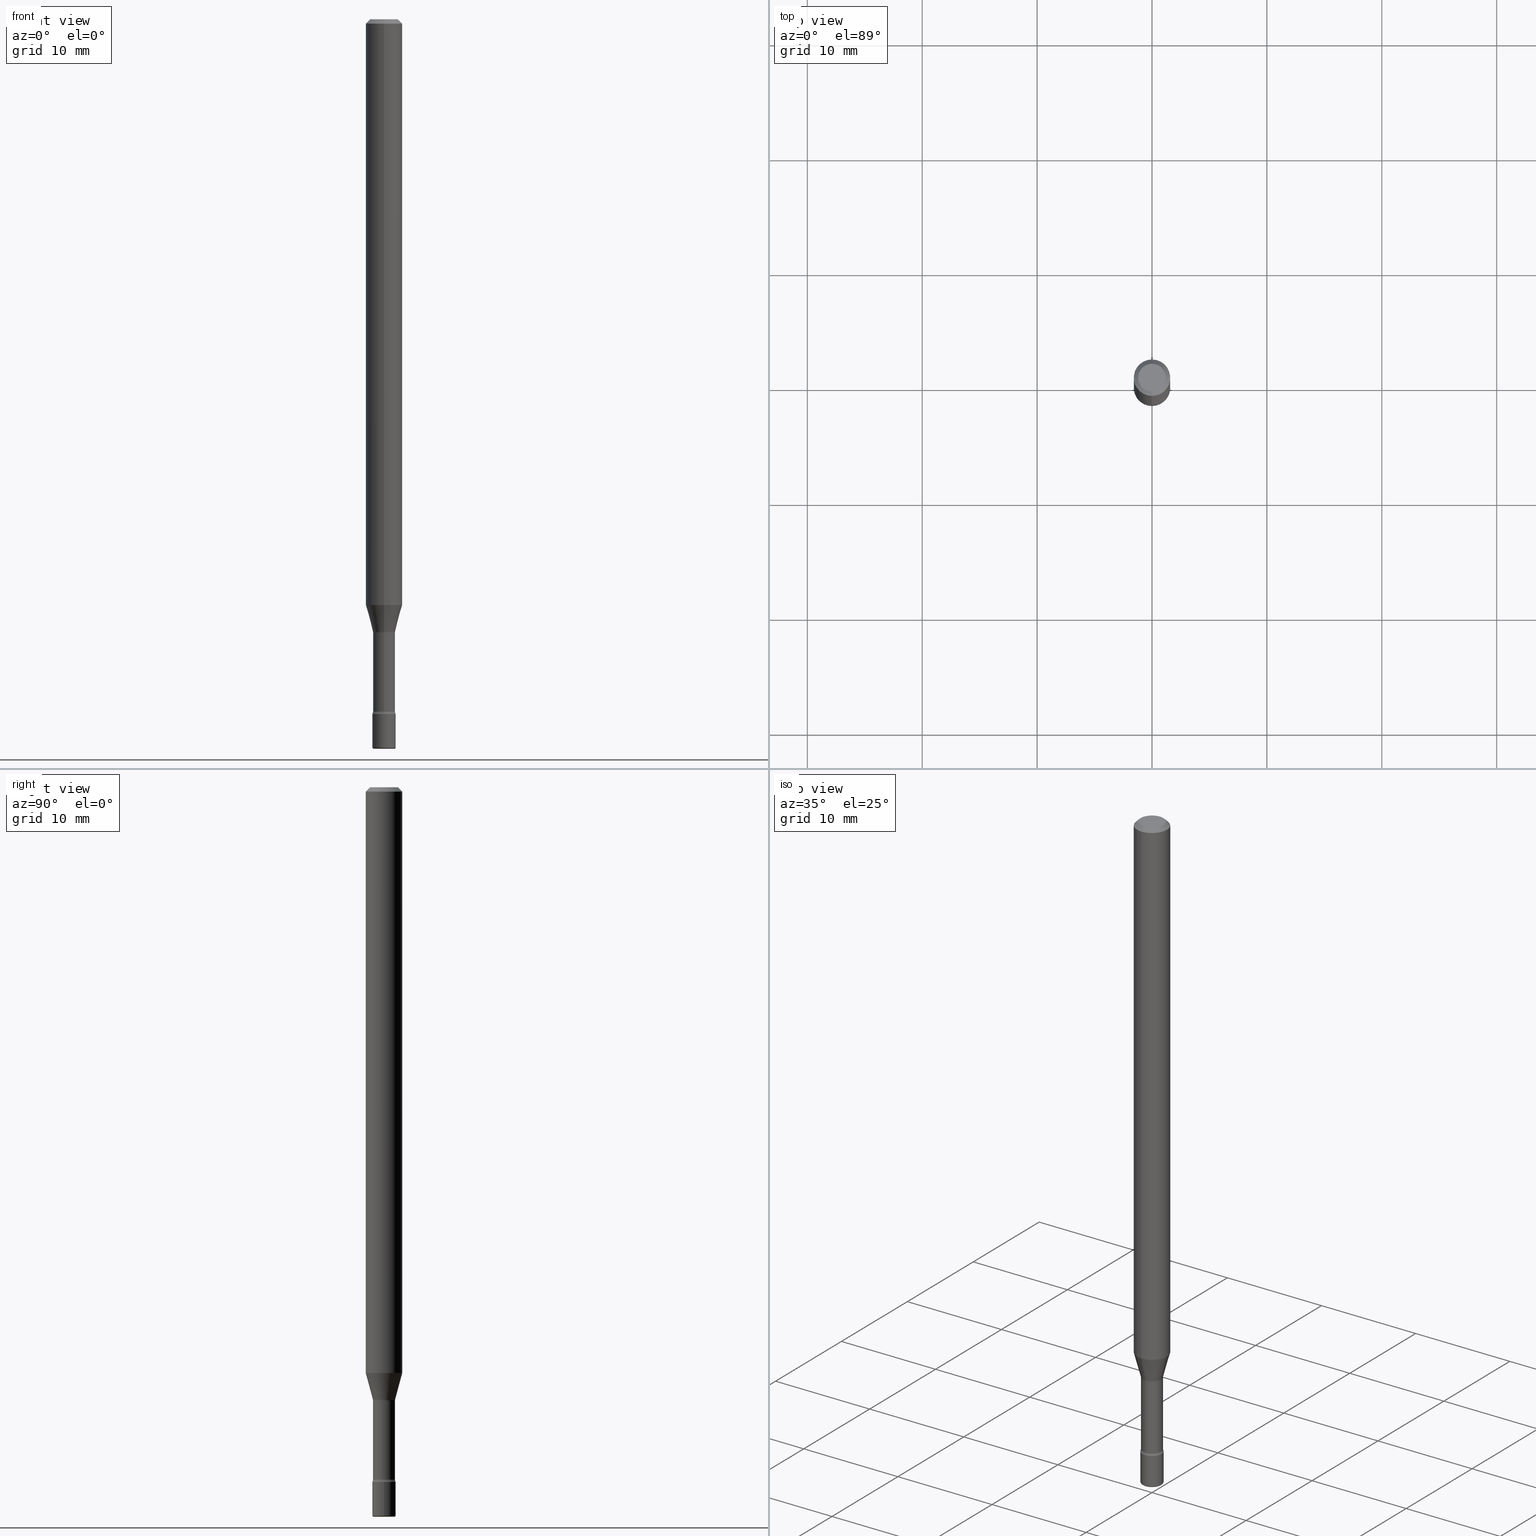
[diagram: canonical four-view strip — front | top / right | iso, engineering-drawing reading convention]
A machine part, canonical four-view strip (front | top / right | iso — engineering-drawing reading convention). The complete STEP part file that produces these views, byte-faithful:
ISO-10303-21;
HEADER;
FILE_DESCRIPTION (( 'STEP AP203' ),
    '1' );
FILE_NAME ('08839.STEP',
    '2024-03-06T20:04:58',
    ( '' ),
    ( '' ),
    'SwSTEP 2.0',
    'SolidWorks 2023',
    '' );
FILE_SCHEMA (( 'CONFIG_CONTROL_DESIGN' ));
ENDSEC;

DATA;
#1 = VECTOR ( 'NONE', #470, 39.37007874015748143 ) ;
#2 = DIRECTION ( 'NONE',  ( -2.445371158952634038E-29, 3.491621175237824120E-15, 1.000000000000000000 ) ) ;
#3 = ORIENTED_EDGE ( 'NONE', *, *, #386, .T. ) ;
#4 = CALENDAR_DATE ( 2024, 6, 3 ) ;
#5 = EDGE_CURVE ( 'NONE', #192, #325, #60, .T. ) ;
#6 = DIRECTION ( 'NONE',  ( -2.445468806185136597E-29, 3.491481338843145583E-15, 1.000000000000000000 ) ) ;
#7 = CALENDAR_DATE ( 2024, 6, 3 ) ;
#8 = DIRECTION ( 'NONE',  ( -2.445371158952634318E-29, 3.491621175237824120E-15, 1.000000000000000000 ) ) ;
#9 = DIRECTION ( 'NONE',  ( -2.438088387897960049E-29, 3.491481338843145188E-15, 1.000000000000000000 ) ) ;
#10 = CIRCLE ( 'NONE', #81, 0.06250000000000000000 ) ;
#11 = VECTOR ( 'NONE', #363, 39.37007874015748143 ) ;
#12 = CARTESIAN_POINT ( 'NONE',  ( 6.113672015462840371E-29, -8.728703347107863365E-15, -2.499999999999999556 ) ) ;
#13 = CARTESIAN_POINT ( 'NONE',  ( -3.673038368462462390E-16, -0.05260000000000734227, -2.101974787463810834 ) ) ;
#14 = ORIENTED_EDGE ( 'NONE', *, *, #521, .F. ) ;
#15 = ADVANCED_FACE ( 'NONE', ( #117 ), #465, .T. ) ;
#16 = CIRCLE ( 'NONE', #142, 0.06250000000000000000 ) ;
#17 = FACE_OUTER_BOUND ( 'NONE', #335, .T. ) ;
#18 = VERTEX_POINT ( 'NONE', #417 ) ;
#19 = CARTESIAN_POINT ( 'NONE',  ( 4.440892098500625669E-16, 0.06250000000000000000, 2.598470754388820311E-16 ) ) ;
#20 = CARTESIAN_POINT ( 'NONE',  ( 6.618019183240949293E-46, -9.462883955146153343E-32, -2.708254496839223107E-17 ) ) ;
#21 = ORIENTED_EDGE ( 'NONE', *, *, #547, .T. ) ;
#22 = EDGE_CURVE ( 'NONE', #206, #204, #127, .T. ) ;
#23 = TOROIDAL_SURFACE ( 'NONE', #244, 0.05260000000000000092, 0.01500000000000002720 ) ;
#24 = ORIENTED_EDGE ( 'NONE', *, *, #22, .F. ) ;
#25 = CARTESIAN_POINT ( 'NONE',  ( -4.364351673553427600E-16, -0.06250000000000703604, -2.007071934891535125 ) ) ;
#26 = ADVANCED_FACE ( 'NONE', ( #563 ), #190, .T. ) ;
#27 = ORIENTED_EDGE ( 'NONE', *, *, #447, .T. ) ;
#28 = CYLINDRICAL_SURFACE ( 'NONE', #562, 0.04000000000000000083 ) ;
#29 = ORIENTED_EDGE ( 'NONE', *, *, #33, .F. ) ;
#30 = DIRECTION ( 'NONE',  ( 1.000000000000000000, -6.982962677686276966E-15, 0.000000000000000000 ) ) ;
#31 = EDGE_CURVE ( 'NONE', #382, #156, #32, .T. ) ;
#32 = LINE ( 'NONE', #208, #448 ) ;
#33 = EDGE_CURVE ( 'NONE', #560, #122, #226, .T. ) ;
#34 = AXIS2_PLACEMENT_3D ( 'NONE', #283, #507, #115 ) ;
#35 = AXIS2_PLACEMENT_3D ( 'NONE', #360, #109, #356 ) ;
#36 = DIRECTION ( 'NONE',  ( 6.982962677686265922E-15, 1.000000000000000000, -3.483106191921935554E-15 ) ) ;
#37 = ORIENTED_EDGE ( 'NONE', *, *, #439, .T. ) ;
#38 = CARTESIAN_POINT ( 'NONE',  ( 5.820215758720625190E-29, -8.309725586446686731E-15, -2.379999999999999893 ) ) ;
#39 = ADVANCED_FACE ( 'NONE', ( #80 ), #183, .T. ) ;
#40 = APPROVAL_ROLE ( '' ) ;
#41 = CARTESIAN_POINT ( 'NONE',  ( -1.169113584055446105E-44, 1.669184350826100908E-30, 4.780733988912460139E-16 ) ) ;
#42 = PRODUCT_DEFINITION_SHAPE ( 'NONE', 'NONE',  #357 ) ;
#43 = ORIENTED_EDGE ( 'NONE', *, *, #273, .F. ) ;
#44 = CARTESIAN_POINT ( 'NONE',  ( 5.820215758720625190E-29, -8.309725586446686731E-15, -2.379999999999999893 ) ) ;
#45 = DATE_TIME_ROLE ( 'creation_date' ) ;
#46 = DIRECTION ( 'NONE',  ( 6.982962677686265922E-15, 1.000000000000000000, -3.483106191921935554E-15 ) ) ;
#47 = DIRECTION ( 'NONE',  ( 6.982962677686265922E-15, 1.000000000000000000, -3.491621175237824120E-15 ) ) ;
#48 = CARTESIAN_POINT ( 'NONE',  ( 5.800312587032241644E-29, -8.281309132162736146E-15, -2.371861204020250025 ) ) ;
#49 = CIRCLE ( 'NONE', #34, 0.04000000000000000083 ) ;
#50 = AXIS2_PLACEMENT_3D ( 'NONE', #522, #258, #491 ) ;
#51 = ORIENTED_EDGE ( 'NONE', *, *, #475, .F. ) ;
#52 = CYLINDRICAL_SURFACE ( 'NONE', #414, 0.06250000000000000000 ) ;
#53 = DIMENSIONAL_EXPONENTS ( 1.000000000000000000, 0.000000000000000000, 0.000000000000000000, 0.000000000000000000, 0.000000000000000000, 0.000000000000000000, 0.000000000000000000 ) ;
#54 = FACE_OUTER_BOUND ( 'NONE', #515, .T. ) ;
#55 = EDGE_LOOP ( 'NONE', ( #150, #135 ) ) ;
#56 = APPLICATION_CONTEXT ( 'configuration controlled 3d designs of mechanical parts and assemblies' ) ;
#57 = DIRECTION ( 'NONE',  ( -1.000000000000000000, 6.982962677686265922E-15, -4.876176775795935793E-29 ) ) ;
#58 = VECTOR ( 'NONE', #377, 39.37007874015748143 ) ;
#59 = ORIENTED_EDGE ( 'NONE', *, *, #535, .F. ) ;
#60 = CIRCLE ( 'NONE', #476, 0.04000000000000000777 ) ;
#61 = CIRCLE ( 'NONE', #210, 0.06250000000000000000 ) ;
#62 = ORIENTED_EDGE ( 'NONE', *, *, #567, .T. ) ;
#63 = DIRECTION ( 'NONE',  ( -6.982962677686265922E-15, -1.000000000000000000, 3.491621175237824120E-15 ) ) ;
#64 = EDGE_CURVE ( 'NONE', #214, #480, #49, .T. ) ;
#65 = ORIENTED_EDGE ( 'NONE', *, *, #506, .T. ) ;
#66 = LINE ( 'NONE', #19, #11 ) ;
#67 = CARTESIAN_POINT ( 'NONE',  ( 6.101444671431915719E-29, -8.711245940413648329E-15, -2.495000000000000107 ) ) ;
#68 = APPROVAL ( #531, 'UNSPECIFIED' ) ;
#69 = ORIENTED_EDGE ( 'NONE', *, *, #516, .F. ) ;
#70 = CARTESIAN_POINT ( 'NONE',  ( 0.000000000000000000, 0.000000000000000000, 0.000000000000000000 ) ) ;
#71 = DIRECTION ( 'NONE',  ( 7.105427357601001859E-15, 1.000000000000000000, 0.000000000000000000 ) ) ;
#72 = AXIS2_PLACEMENT_3D ( 'NONE', #492, #407, #499 ) ;
#73 = CARTESIAN_POINT ( 'NONE',  ( 3.668056738428958326E-31, -5.237431762856745967E-17, -0.01500000000000002720 ) ) ;
#74 = ORIENTED_EDGE ( 'NONE', *, *, #290, .T. ) ;
#75 = FACE_OUTER_BOUND ( 'NONE', #452, .T. ) ;
#76 = ORIENTED_EDGE ( 'NONE', *, *, #314, .T. ) ;
#77 = ORIENTED_EDGE ( 'NONE', *, *, #393, .T. ) ;
#78 = DIRECTION ( 'NONE',  ( -2.445371158952634318E-29, 3.491621175237824120E-15, 1.000000000000000000 ) ) ;
#79 = UNCERTAINTY_MEASURE_WITH_UNIT (LENGTH_MEASURE( 1.000000000000000082E-05 ), #485, 'distance_accuracy_value', 'NONE');
#80 = FACE_OUTER_BOUND ( 'NONE', #280, .T. ) ;
#81 = AXIS2_PLACEMENT_3D ( 'NONE', #339, #570, #301 ) ;
#82 = ORIENTED_EDGE ( 'NONE', *, *, #549, .F. ) ;
#83 = CALENDAR_DATE ( 2024, 6, 3 ) ;
#84 = CARTESIAN_POINT ( 'NONE',  ( -0.03999999999999989675, -8.427028846109609580E-15, -2.495000000000000107 ) ) ;
#85 = PERSON ( 'UNSPECIFIED', 'UNSPECIFIED', 'UNSPECIFIED', ('UNSPECIFIED'), ('UNSPECIFIED'), ('UNSPECIFIED') ) ;
#86 = ORIENTED_EDGE ( 'NONE', *, *, #398, .T. ) ;
#87 = APPROVAL_ROLE ( '' ) ;
#88 = DIRECTION ( 'NONE',  ( 1.000000000000000000, -6.982962677686265922E-15, 4.876176775795935793E-29 ) ) ;
#89 = ORIENTED_EDGE ( 'NONE', *, *, #22, .T. ) ;
#90 = COORDINATED_UNIVERSAL_TIME_OFFSET ( 5, 0, .BEHIND. ) ;
#91 = LINE ( 'NONE', #347, #252 ) ;
#92 = CIRCLE ( 'NONE', #277, 0.03500000000000000333 ) ;
#93 = ORIENTED_EDGE ( 'NONE', *, *, #547, .F. ) ;
#94 = TOROIDAL_SURFACE ( 'NONE', #276, 0.05260000000000002174, 0.01499999999999996822 ) ;
#95 = PRODUCT_DEFINITION_FORMATION_WITH_SPECIFIED_SOURCE ( 'ANY', '', #132, .NOT_KNOWN. ) ;
#96 = CARTESIAN_POINT ( 'NONE',  ( -2.625593966809460162E-16, -0.03760000000000833509, -2.371861204020250025 ) ) ;
#97 = COORDINATED_UNIVERSAL_TIME_OFFSET ( 5, 0, .BEHIND. ) ;
#98 = CC_DESIGN_PERSON_AND_ORGANIZATION_ASSIGNMENT ( #294, #481, ( #357 ) ) ;
#99 = CARTESIAN_POINT ( 'NONE',  ( -2.625593966809521792E-16, -0.03760000000000733589, -2.101974787463810834 ) ) ;
#100 = EDGE_CURVE ( 'NONE', #177, #204, #141, .T. ) ;
#101 = LINE ( 'NONE', #279, #58 ) ;
#102 = VERTEX_POINT ( 'NONE', #25 ) ;
#103 = CARTESIAN_POINT ( 'NONE',  ( 6.101444671431915719E-29, -8.711245940413648329E-15, -2.495000000000000107 ) ) ;
#104 = CIRCLE ( 'NONE', #494, 0.03759999999999999454 ) ;
#105 = CC_DESIGN_APPROVAL ( #68, ( #357 ) ) ;
#106 = CARTESIAN_POINT ( 'NONE',  ( 5.140313774130382338E-29, -7.339005745148683013E-15, -2.101974787463810834 ) ) ;
#107 = PLANE ( 'NONE',  #322 ) ;
#108 = ORIENTED_EDGE ( 'NONE', *, *, #521, .T. ) ;
#109 = DIRECTION ( 'NONE',  ( -2.445371158952634318E-29, 3.491621175237824120E-15, 1.000000000000000000 ) ) ;
#110 = ORIENTED_EDGE ( 'NONE', *, *, #368, .F. ) ;
#111 = CIRCLE ( 'NONE', #306, 0.04000000000000000083 ) ;
#112 =( GEOMETRIC_REPRESENTATION_CONTEXT ( 3 ) GLOBAL_UNCERTAINTY_ASSIGNED_CONTEXT ( ( #79 ) ) GLOBAL_UNIT_ASSIGNED_CONTEXT ( ( #485, #391, #569 ) ) REPRESENTATION_CONTEXT ( 'NONE', 'WORKASPACE' ) );
#113 = ORIENTED_EDGE ( 'NONE', *, *, #259, .F. ) ;
#114 = DIRECTION ( 'NONE',  ( 1.000000000000000000, -6.982962677686265922E-15, 4.876176775795935793E-29 ) ) ;
#115 = DIRECTION ( 'NONE',  ( 1.000000000000000000, -6.982962677686259611E-15, 0.000000000000000000 ) ) ;
#116 = DIRECTION ( 'NONE',  ( -6.982962677686265133E-15, -1.000000000000000000, 3.491621175237824120E-15 ) ) ;
#117 = FACE_OUTER_BOUND ( 'NONE', #566, .T. ) ;
#118 = APPROVAL_PERSON_ORGANIZATION ( #572, #511, #40 ) ;
#119 = CIRCLE ( 'NONE', #455, 0.004999999999999776325 ) ;
#120 = DIRECTION ( 'NONE',  ( -6.982962677686265922E-15, -1.000000000000000000, 3.491621175237824120E-15 ) ) ;
#121 = ORIENTED_EDGE ( 'NONE', *, *, #425, .T. ) ;
#122 = VERTEX_POINT ( 'NONE', #203 ) ;
#123 = DIRECTION ( 'NONE',  ( -2.445371158952634318E-29, 3.491621175237824120E-15, 1.000000000000000000 ) ) ;
#124 = DIRECTION ( 'NONE',  ( -2.445371158952634318E-29, 3.491621175237824120E-15, 1.000000000000000000 ) ) ;
#125 = LENGTH_MEASURE_WITH_UNIT ( LENGTH_MEASURE( 0.02539999999999999897 ), #140 );
#126 = DIRECTION ( 'NONE',  ( -2.445371158952634318E-29, 3.491621175237824120E-15, 1.000000000000000000 ) ) ;
#127 = CIRCLE ( 'NONE', #285, 0.03759999999999999454 ) ;
#128 = AXIS2_PLACEMENT_3D ( 'NONE', #20, #509, #116 ) ;
#129 = DIRECTION ( 'NONE',  ( -2.445371158952634318E-29, 3.491621175237824120E-15, 1.000000000000000000 ) ) ;
#130 = EDGE_LOOP ( 'NONE', ( #14, #293, #316, #59 ) ) ;
#131 = CALENDAR_DATE ( 2024, 6, 3 ) ;
#132 = PRODUCT ( '08839', '08839', '', ( #424 ) ) ;
#133 = DESIGN_CONTEXT ( 'detailed design', #196, 'design' ) ;
#134 = FACE_OUTER_BOUND ( 'NONE', #198, .T. ) ;
#135 = ORIENTED_EDGE ( 'NONE', *, *, #290, .F. ) ;
#136 = PERSON_AND_ORGANIZATION ( #85, #366 ) ;
#137 = CARTESIAN_POINT ( 'NONE',  ( -2.661284769303988177E-16, -0.03811111260567130038, -2.098092501787272912 ) ) ;
#138 = ADVANCED_FACE ( 'NONE', ( #487 ), #444, .F. ) ;
#139 = CIRCLE ( 'NONE', #128, 0.04750000000000000749 ) ;
#140 =( LENGTH_UNIT ( ) NAMED_UNIT ( * ) SI_UNIT ( $, .METRE. ) );
#141 = CIRCLE ( 'NONE', #297, 0.01500000000000002720 ) ;
#142 = AXIS2_PLACEMENT_3D ( 'NONE', #230, #270, #275 ) ;
#143 = CARTESIAN_POINT ( 'NONE',  ( -1.169113584055446105E-44, 1.669184350826100908E-30, 4.780733988912460139E-16 ) ) ;
#144 = CARTESIAN_POINT ( 'NONE',  ( 2.444036937190804617E-16, 0.03499999999999127420, -2.500000000000000000 ) ) ;
#145 = CARTESIAN_POINT ( 'NONE',  ( 5.140108522109596657E-29, -7.339299677724666424E-15, -2.101974787463810834 ) ) ;
#146 = CC_DESIGN_PERSON_AND_ORGANIZATION_ASSIGNMENT ( #175, #432, ( #95 ) ) ;
#147 = EDGE_CURVE ( 'NONE', #170, #206, #91, .T. ) ;
#148 = PLANE ( 'NONE',  #184 ) ;
#149 = AXIS2_PLACEMENT_3D ( 'NONE', #553, #78, #251 ) ;
#150 = ORIENTED_EDGE ( 'NONE', *, *, #439, .F. ) ;
#151 = CARTESIAN_POINT ( 'NONE',  ( 3.840629472727447874E-16, 0.04750000000000000749, -1.929345507921888929E-16 ) ) ;
#152 = DIRECTION ( 'NONE',  ( 1.000000000000000000, -6.982962677686451304E-15, 0.000000000000000000 ) ) ;
#153 = ORIENTED_EDGE ( 'NONE', *, *, #372, .F. ) ;
#154 = DIRECTION ( 'NONE',  ( 1.839019923739601104E-15, 0.2588190451025250693, 0.9659258262890670910 ) ) ;
#155 = AXIS2_PLACEMENT_3D ( 'NONE', #176, #126, #477 ) ;
#156 = VERTEX_POINT ( 'NONE', #295 ) ;
#157 = DIRECTION ( 'NONE',  ( -2.445371158952634318E-29, 3.491621175237824120E-15, 1.000000000000000000 ) ) ;
#158 = DIRECTION ( 'NONE',  ( -2.445468806185136597E-29, 3.491481338843145583E-15, 1.000000000000000000 ) ) ;
#159 = LINE ( 'NONE', #555, #375 ) ;
#160 = EDGE_CURVE ( 'NONE', #170, #454, #330, .T. ) ;
#161 = VERTEX_POINT ( 'NONE', #137 ) ;
#162 = LINE ( 'NONE', #243, #253 ) ;
#163 = DIRECTION ( 'NONE',  ( 1.000000000000000000, -6.982962677686274599E-15, 4.883557194083115143E-29 ) ) ;
#164 = AXIS2_PLACEMENT_3D ( 'NONE', #413, #474, #36 ) ;
#165 = CIRCLE ( 'NONE', #72, 0.04750000000000000749 ) ;
#166 = CARTESIAN_POINT ( 'NONE',  ( 0.04000000000000000083, -8.589044093554136769E-15, -2.379999999999999893 ) ) ;
#167 = DIRECTION ( 'NONE',  ( 7.105427357601001859E-15, 1.000000000000000000, 0.000000000000000000 ) ) ;
#168 = SECURITY_CLASSIFICATION_LEVEL ( 'unclassified' ) ;
#169 = EDGE_LOOP ( 'NONE', ( #556, #361 ) ) ;
#170 = VERTEX_POINT ( 'NONE', #96 ) ;
#171 = DIRECTION ( 'NONE',  ( 0.000000000000000000, 0.000000000000000000, 1.000000000000000000 ) ) ;
#172 = CYLINDRICAL_SURFACE ( 'NONE', #546, 0.03760000000000002923 ) ;
#173 = LOCAL_TIME ( 15, 4, 58.00000000000000000, #524 ) ;
#174 = AXIS2_PLACEMENT_3D ( 'NONE', #466, #284, #30 ) ;
#175 = PERSON_AND_ORGANIZATION ( #85, #366 ) ;
#176 = CARTESIAN_POINT ( 'NONE',  ( 5.819983358307269654E-29, -8.310058397066021462E-15, -2.379999999999999893 ) ) ;
#177 = VERTEX_POINT ( 'NONE', #351 ) ;
#178 = DATE_AND_TIME ( #4, #416 ) ;
#179 = DIRECTION ( 'NONE',  ( -6.982962677686265922E-15, -1.000000000000000000, 3.491621175237824120E-15 ) ) ;
#180 = CC_DESIGN_PERSON_AND_ORGANIZATION_ASSIGNMENT ( #340, #388, ( #132 ) ) ;
#181 = APPROVAL_DATE_TIME ( #565, #542 ) ;
#182 = CARTESIAN_POINT ( 'NONE',  ( 2.671640686457978283E-16, 0.03760000000000002923, 3.467884427023037687E-16 ) ) ;
#183 = TOROIDAL_SURFACE ( 'NONE', #262, 0.03500000000000000333, 0.004999999999999771988 ) ;
#184 = AXIS2_PLACEMENT_3D ( 'NONE', #451, #403, #315 ) ;
#185 = DIRECTION ( 'NONE',  ( -2.445371158952634038E-29, 3.491621175237824120E-15, 1.000000000000000000 ) ) ;
#186 = LINE ( 'NONE', #229, #438 ) ;
#187 = DIRECTION ( 'NONE',  ( -1.000000000000000000, 6.982962677686265922E-15, -4.883557194083112340E-29 ) ) ;
#188 = DATE_AND_TIME ( #131, #488 ) ;
#189 = FACE_OUTER_BOUND ( 'NONE', #408, .T. ) ;
#190 = CONICAL_SURFACE ( 'NONE', #164, 0.06250000000000000000, 0.7853981633974480570 ) ;
#191 = AXIS2_PLACEMENT_3D ( 'NONE', #371, #202, #545 ) ;
#192 = VERTEX_POINT ( 'NONE', #84 ) ;
#193 = CARTESIAN_POINT ( 'NONE',  ( 0.03500000000000000333, -8.955649634132666717E-15, -2.495000000000000107 ) ) ;
#194 = ORIENTED_EDGE ( 'NONE', *, *, #368, .T. ) ;
#195 = ADVANCED_FACE ( 'NONE', ( #349 ), #94, .F. ) ;
#196 = APPLICATION_CONTEXT ( 'configuration controlled 3d designs of mechanical parts and assemblies' ) ;
#197 = CARTESIAN_POINT ( 'NONE',  ( -2.793185071073924012E-16, -0.04000000000000829975, -2.379999999999999893 ) ) ;
#198 = EDGE_LOOP ( 'NONE', ( #113, #422, #420, #235 ) ) ;
#199 = CARTESIAN_POINT ( 'NONE',  ( -0.04000000000000000083, 2.842170943040400803E-16, -1.967574036101962509E-30 ) ) ;
#200 = AXIS2_PLACEMENT_3D ( 'NONE', #256, #437, #385 ) ;
#201 = CARTESIAN_POINT ( 'NONE',  ( 3.737454790098707842E-16, 0.05259999999999174364, -2.371861204020250025 ) ) ;
#202 = DIRECTION ( 'NONE',  ( -2.445371158952634318E-29, 3.491621175237824120E-15, 1.000000000000000000 ) ) ;
#203 = CARTESIAN_POINT ( 'NONE',  ( 2.842170943040980615E-16, 0.03999999999999167416, -2.380000000000000338 ) ) ;
#204 = VERTEX_POINT ( 'NONE', #532 ) ;
#205 = CYLINDRICAL_SURFACE ( 'NONE', #467, 0.04000000000000000083 ) ;
#206 = VERTEX_POINT ( 'NONE', #99 ) ;
#207 = DIRECTION ( 'NONE',  ( 1.000000000000000000, -6.982962677686265922E-15, 4.876176775795935793E-29 ) ) ;
#208 = CARTESIAN_POINT ( 'NONE',  ( 4.364351673553919652E-16, 0.06249999999999995143, -0.01500000000000024578 ) ) ;
#209 = AXIS2_PLACEMENT_3D ( 'NONE', #41, #8, #223 ) ;
#210 = AXIS2_PLACEMENT_3D ( 'NONE', #336, #326, #321 ) ;
#211 = ORIENTED_EDGE ( 'NONE', *, *, #5, .F. ) ;
#212 = PERSON_AND_ORGANIZATION_ROLE ( 'design_supplier' ) ;
#213 = DIRECTION ( 'NONE',  ( 4.937700262164546464E-15, 0.7071067811865449082, -0.7071067811865501263 ) ) ;
#214 = VERTEX_POINT ( 'NONE', #260 ) ;
#215 = COORDINATED_UNIVERSAL_TIME_OFFSET ( 5, 0, .BEHIND. ) ;
#216 = CARTESIAN_POINT ( 'NONE',  ( 3.668056738428958326E-31, -5.237431762856745967E-17, -0.01500000000000002720 ) ) ;
#217 = CALENDAR_DATE ( 2024, 6, 3 ) ;
#218 = CARTESIAN_POINT ( 'NONE',  ( 3.316907271900976589E-16, 0.04750000000000000749, 5.964342113763027116E-17 ) ) ;
#219 = EDGE_CURVE ( 'NONE', #480, #214, #111, .T. ) ;
#220 = CIRCLE ( 'NONE', #174, 0.03500000000000000333 ) ;
#221 = APPROVAL_ROLE ( '' ) ;
#222 = CARTESIAN_POINT ( 'NONE',  ( 0.03999999999999989675, -8.990564447521098367E-15, -2.495000000000000107 ) ) ;
#223 = DIRECTION ( 'NONE',  ( -6.982962677686265922E-15, -1.000000000000000000, 3.491621175237824120E-15 ) ) ;
#224 = DIRECTION ( 'NONE',  ( 2.445371158952634318E-29, -3.491621175237824120E-15, -1.000000000000000000 ) ) ;
#225 = ADVANCED_FACE ( 'NONE', ( #443 ), #479, .T. ) ;
#226 = CIRCLE ( 'NONE', #533, 0.01499999999999996822 ) ;
#227 = DIRECTION ( 'NONE',  ( -2.445371158952634318E-29, 3.491621175237824120E-15, 1.000000000000000000 ) ) ;
#228 = ADVANCED_FACE ( 'NONE', ( #433 ), #352, .T. ) ;
#229 = CARTESIAN_POINT ( 'NONE',  ( -4.364351673553916201E-16, -0.06250000000000000000, 6.962997223436100461E-16 ) ) ;
#230 = CARTESIAN_POINT ( 'NONE',  ( 4.908035823527020154E-29, -7.007934868092835849E-15, -2.007071934891535125 ) ) ;
#231 = APPROVAL_PERSON_ORGANIZATION ( #490, #68, #221 ) ;
#232 = ADVANCED_FACE ( 'NONE', ( #529 ), #429, .T. ) ;
#233 = DIRECTION ( 'NONE',  ( -6.982962677686265922E-15, -1.000000000000000000, 0.000000000000000000 ) ) ;
#234 = AXIS2_PLACEMENT_3D ( 'NONE', #103, #354, #362 ) ;
#235 = ORIENTED_EDGE ( 'NONE', *, *, #346, .F. ) ;
#236 = DIRECTION ( 'NONE',  ( -2.445371158952634318E-29, 3.491621175237824120E-15, 1.000000000000000000 ) ) ;
#237 = ORIENTED_EDGE ( 'NONE', *, *, #434, .T. ) ;
#238 = PRODUCT_RELATED_PRODUCT_CATEGORY ( 'detail', '', ( #132 ) ) ;
#239 = DIRECTION ( 'NONE',  ( -1.807323732225330928E-15, -0.2588190451025182970, 0.9659258262890689783 ) ) ;
#240 = EDGE_LOOP ( 'NONE', ( #431, #313, #24, #328 ) ) ;
#241 = EDGE_CURVE ( 'NONE', #161, #177, #311, .T. ) ;
#242 = MANIFOLD_SOLID_BREP ( 'Body-Move/Copy2[2]', #512 ) ;
#243 = CARTESIAN_POINT ( 'NONE',  ( -4.287811248607203282E-16, -0.06250000000000005551, -0.01499999999999981036 ) ) ;
#244 = AXIS2_PLACEMENT_3D ( 'NONE', #106, #268, #63 ) ;
#245 = ORIENTED_EDGE ( 'NONE', *, *, #399, .T. ) ;
#246 = CONICAL_SURFACE ( 'NONE', #381, 0.03811111260566397291, 0.2617993877991502960 ) ;
#247 = DIRECTION ( 'NONE',  ( -6.982962677686266711E-15, -1.000000000000000000, 0.000000000000000000 ) ) ;
#248 = LINE ( 'NONE', #419, #333 ) ;
#249 = ORIENTED_EDGE ( 'NONE', *, *, #535, .T. ) ;
#250 = ORIENTED_EDGE ( 'NONE', *, *, #425, .F. ) ;
#251 = DIRECTION ( 'NONE',  ( -6.982962677686265922E-15, -1.000000000000000000, 0.000000000000000000 ) ) ;
#252 = VECTOR ( 'NONE', #394, 39.37007874015748143 ) ;
#253 = VECTOR ( 'NONE', #518, 39.37007874015748143 ) ;
#254 = ORIENTED_EDGE ( 'NONE', *, *, #464, .F. ) ;
#255 = DATE_AND_TIME ( #83, #173 ) ;
#256 = CARTESIAN_POINT ( 'NONE',  ( -0.03500000000000000333, -8.462555982897612254E-15, -2.495000000000000107 ) ) ;
#257 = APPROVAL_STATUS ( 'not_yet_approved' ) ;
#258 = DIRECTION ( 'NONE',  ( -1.000000000000000000, 6.982962677686265922E-15, -4.883557194083112340E-29 ) ) ;
#259 = EDGE_CURVE ( 'NONE', #560, #204, #342, .T. ) ;
#260 = CARTESIAN_POINT ( 'NONE',  ( -0.04000000000000000083, -8.226268669126126415E-15, -2.379999999999999893 ) ) ;
#261 = CC_DESIGN_SECURITY_CLASSIFICATION ( #558, ( #95 ) ) ;
#262 = AXIS2_PLACEMENT_3D ( 'NONE', #550, #158, #163 ) ;
#263 = CIRCLE ( 'NONE', #534, 0.06250000000000000000 ) ;
#264 = DIRECTION ( 'NONE',  ( -2.445468806185136597E-29, 3.491481338843145583E-15, 1.000000000000000000 ) ) ;
#265 = CC_DESIGN_APPROVAL ( #511, ( #558 ) ) ;
#266 = AXIS2_PLACEMENT_3D ( 'NONE', #392, #6, #540 ) ;
#267 = AXIS2_PLACEMENT_3D ( 'NONE', #462, #157, #282 ) ;
#268 = DIRECTION ( 'NONE',  ( -2.445371158952634318E-29, 3.491621175237824120E-15, 1.000000000000000000 ) ) ;
#269 = APPROVAL_DATE_TIME ( #188, #511 ) ;
#270 = DIRECTION ( 'NONE',  ( -2.445371158952634318E-29, 3.491621175237824120E-15, 1.000000000000000000 ) ) ;
#271 = ADVANCED_FACE ( 'NONE', ( #134 ), #172, .T. ) ;
#272 = SHAPE_DEFINITION_REPRESENTATION ( #42, #445 ) ;
#273 = EDGE_CURVE ( 'NONE', #390, #156, #10, .T. ) ;
#274 = DIRECTION ( 'NONE',  ( -2.445371158952634318E-29, 3.491621175237824120E-15, 1.000000000000000000 ) ) ;
#275 = DIRECTION ( 'NONE',  ( -6.982962677686265922E-15, -1.000000000000000000, 4.370956789862821150E-15 ) ) ;
#276 = AXIS2_PLACEMENT_3D ( 'NONE', #299, #129, #179 ) ;
#277 = AXIS2_PLACEMENT_3D ( 'NONE', #12, #536, #397 ) ;
#278 = ORIENTED_EDGE ( 'NONE', *, *, #346, .T. ) ;
#279 = CARTESIAN_POINT ( 'NONE',  ( 0.04000000000000000083, -2.793185071074506290E-16, 1.950470710318374387E-30 ) ) ;
#280 = EDGE_LOOP ( 'NONE', ( #300, #62, #194, #211 ) ) ;
#281 = ORIENTED_EDGE ( 'NONE', *, *, #100, .T. ) ;
#282 = DIRECTION ( 'NONE',  ( -6.982962677686265922E-15, -1.000000000000000000, 3.491621175237823726E-15 ) ) ;
#283 = CARTESIAN_POINT ( 'NONE',  ( 5.820215758720625190E-29, -8.309725586446686731E-15, -2.379999999999999893 ) ) ;
#284 = DIRECTION ( 'NONE',  ( -2.445468806185136597E-29, 3.491481338843145583E-15, 1.000000000000000000 ) ) ;
#285 = AXIS2_PLACEMENT_3D ( 'NONE', #460, #292, #324 ) ;
#286 = ORIENTED_EDGE ( 'NONE', *, *, #327, .F. ) ;
#287 = AXIS2_PLACEMENT_3D ( 'NONE', #441, #171, #345 ) ;
#288 = LINE ( 'NONE', #199, #1 ) ;
#289 = EDGE_LOOP ( 'NONE', ( #65, #121 ) ) ;
#290 = EDGE_CURVE ( 'NONE', #122, #454, #296, .T. ) ;
#291 = FACE_OUTER_BOUND ( 'NONE', #440, .T. ) ;
#292 = DIRECTION ( 'NONE',  ( -2.445371158952634318E-29, 3.491621175237824120E-15, 1.000000000000000000 ) ) ;
#293 = ORIENTED_EDGE ( 'NONE', *, *, #464, .T. ) ;
#294 = PERSON_AND_ORGANIZATION ( #85, #366 ) ;
#295 = CARTESIAN_POINT ( 'NONE',  ( 4.440892098501120186E-16, 0.06249999999999995143, -0.01500000000000024578 ) ) ;
#296 = CIRCLE ( 'NONE', #155, 0.04000000000000000083 ) ;
#297 = AXIS2_PLACEMENT_3D ( 'NONE', #427, #463, #71 ) ;
#298 = PERSON_AND_ORGANIZATION ( #85, #366 ) ;
#299 = CARTESIAN_POINT ( 'NONE',  ( 5.800312587032241644E-29, -8.281309132162736146E-15, -2.371861204020250025 ) ) ;
#300 = ORIENTED_EDGE ( 'NONE', *, *, #314, .F. ) ;
#301 = DIRECTION ( 'NONE',  ( -6.982962677686265922E-15, -1.000000000000000000, 3.483106191921935554E-15 ) ) ;
#302 = ORIENTED_EDGE ( 'NONE', *, *, #483, .F. ) ;
#303 = APPROVAL_STATUS ( 'not_yet_approved' ) ;
#304 = DIRECTION ( 'NONE',  ( 2.445371158952634038E-29, -3.491621175237824120E-15, -1.000000000000000000 ) ) ;
#305 = AXIS2_PLACEMENT_3D ( 'NONE', #13, #187, #450 ) ;
#306 = AXIS2_PLACEMENT_3D ( 'NONE', #44, #264, #482 ) ;
#307 = TOROIDAL_SURFACE ( 'NONE', #486, 0.05260000000000002174, 0.01499999999999996822 ) ;
#308 = DIRECTION ( 'NONE',  ( -2.445371158952634318E-29, 3.491621175237824120E-15, 1.000000000000000000 ) ) ;
#309 = CARTESIAN_POINT ( 'NONE',  ( 5.130614892685376800E-29, -7.325744206848145525E-15, -2.098092501787272912 ) ) ;
#310 = DIRECTION ( 'NONE',  ( -6.982962677686266711E-15, -1.000000000000000000, 3.491481338843145583E-15 ) ) ;
#311 = CIRCLE ( 'NONE', #426, 0.03811111260566397291 ) ;
#312 = DIRECTION ( 'NONE',  ( -6.982962677686265922E-15, -1.000000000000000000, 3.491621175237823726E-15 ) ) ;
#313 = ORIENTED_EDGE ( 'NONE', *, *, #259, .T. ) ;
#314 = EDGE_CURVE ( 'NONE', #367, #192, #364, .T. ) ;
#315 = DIRECTION ( 'NONE',  ( -6.982962677686265922E-15, -1.000000000000000000, 3.491621175237824120E-15 ) ) ;
#316 = ORIENTED_EDGE ( 'NONE', *, *, #372, .T. ) ;
#317 = ORIENTED_EDGE ( 'NONE', *, *, #64, .F. ) ;
#318 = FACE_OUTER_BOUND ( 'NONE', #55, .T. ) ;
#319 = ORIENTED_EDGE ( 'NONE', *, *, #64, .T. ) ;
#320 = LOCAL_TIME ( 15, 4, 58.00000000000000000, #215 ) ;
#321 = DIRECTION ( 'NONE',  ( -6.982962677686265922E-15, -1.000000000000000000, 4.370956789862821150E-15 ) ) ;
#322 = AXIS2_PLACEMENT_3D ( 'NONE', #144, #453, #57 ) ;
#323 = DIRECTION ( 'NONE',  ( -2.445371158952634318E-29, 3.491621175237824120E-15, 1.000000000000000000 ) ) ;
#324 = DIRECTION ( 'NONE',  ( -6.982962677686265922E-15, -1.000000000000000000, 0.000000000000000000 ) ) ;
#325 = VERTEX_POINT ( 'NONE', #222 ) ;
#326 = DIRECTION ( 'NONE',  ( -2.445371158952634318E-29, 3.491621175237824120E-15, 1.000000000000000000 ) ) ;
#327 = EDGE_CURVE ( 'NONE', #325, #192, #525, .T. ) ;
#328 = ORIENTED_EDGE ( 'NONE', *, *, #147, .F. ) ;
#329 = DIRECTION ( 'NONE',  ( -6.982962677686265922E-15, -1.000000000000000000, 0.000000000000000000 ) ) ;
#330 = CIRCLE ( 'NONE', #50, 0.01499999999999996822 ) ;
#331 = VERTEX_POINT ( 'NONE', #400 ) ;
#332 = ADVANCED_FACE ( 'NONE', ( #17 ), #23, .F. ) ;
#333 = VECTOR ( 'NONE', #239, 39.37007874015748143 ) ;
#334 = ADVANCED_FACE ( 'NONE', ( #457 ), #52, .T. ) ;
#335 = EDGE_LOOP ( 'NONE', ( #471, #281, #278, #508 ) ) ;
#336 = CARTESIAN_POINT ( 'NONE',  ( 4.908035823527020154E-29, -7.007934868092835849E-15, -2.007071934891535125 ) ) ;
#337 = ORIENTED_EDGE ( 'NONE', *, *, #160, .F. ) ;
#338 = PERSON_AND_ORGANIZATION_ROLE ( 'classification_officer' ) ;
#339 = CARTESIAN_POINT ( 'NONE',  ( 3.668056738428958326E-31, -5.237431762856745967E-17, -0.01500000000000002720 ) ) ;
#340 = PERSON_AND_ORGANIZATION ( #85, #366 ) ;
#341 = CC_DESIGN_DATE_AND_TIME_ASSIGNMENT ( #178, #45, ( #357 ) ) ;
#342 = LINE ( 'NONE', #182, #502 ) ;
#343 = LOCAL_TIME ( 15, 4, 58.00000000000000000, #97 ) ;
#344 = ORIENTED_EDGE ( 'NONE', *, *, #447, .F. ) ;
#345 = DIRECTION ( 'NONE',  ( 1.000000000000000000, 0.000000000000000000, 0.000000000000000000 ) ) ;
#346 = EDGE_CURVE ( 'NONE', #204, #206, #104, .T. ) ;
#347 = CARTESIAN_POINT ( 'NONE',  ( -2.625593966810038003E-16, -0.03760000000000002923, 6.093583550801884071E-16 ) ) ;
#348 = APPLICATION_PROTOCOL_DEFINITION ( 'international standard', 'config_control_design', 1994, #196 ) ;
#349 = FACE_OUTER_BOUND ( 'NONE', #380, .T. ) ;
#350 = APPLICATION_PROTOCOL_DEFINITION ( 'international standard', 'config_control_design', 1994, #56 ) ;
#351 = CARTESIAN_POINT ( 'NONE',  ( 3.574424759935301712E-16, 0.03811111260565665237, -2.098092501787272912 ) ) ;
#352 = CONICAL_SURFACE ( 'NONE', #559, 0.06250000000000000000, 0.7853981633974480570 ) ;
#353 = CIRCLE ( 'NONE', #514, 0.03760000000000005699 ) ;
#354 = DIRECTION ( 'NONE',  ( -2.445468806185136597E-29, 3.491481338843145583E-15, 1.000000000000000000 ) ) ;
#355 = DIRECTION ( 'NONE',  ( -6.982962677686266711E-15, -1.000000000000000000, 0.000000000000000000 ) ) ;
#356 = DIRECTION ( 'NONE',  ( -6.982962677686266711E-15, -1.000000000000000000, 0.000000000000000000 ) ) ;
#357 = PRODUCT_DEFINITION ( 'UNKNOWN', '', #95, #133 ) ;
#358 = AXIS2_PLACEMENT_3D ( 'NONE', #218, #304, #47 ) ;
#359 = CIRCLE ( 'NONE', #35, 0.03811111260566397291 ) ;
#360 = CARTESIAN_POINT ( 'NONE',  ( 5.130614892685376800E-29, -7.325744206848145525E-15, -2.098092501787272912 ) ) ;
#361 = ORIENTED_EDGE ( 'NONE', *, *, #567, .F. ) ;
#362 = DIRECTION ( 'NONE',  ( 1.000000000000000000, -6.982962677686274599E-15, 4.883557194083115143E-29 ) ) ;
#363 = DIRECTION ( 'NONE',  ( -2.445371158952634038E-29, 3.491621175237824120E-15, 1.000000000000000000 ) ) ;
#364 = CIRCLE ( 'NONE', #200, 0.004999999999999776325 ) ;
#365 = FACE_OUTER_BOUND ( 'NONE', #130, .T. ) ;
#366 = ORGANIZATION ( 'UNSPECIFIED', 'UNSPECIFIED', '' ) ;
#367 = VERTEX_POINT ( 'NONE', #496 ) ;
#368 = EDGE_CURVE ( 'NONE', #331, #325, #119, .T. ) ;
#369 = CARTESIAN_POINT ( 'NONE',  ( 0.000000000000000000, 0.000000000000000000, 0.000000000000000000 ) ) ;
#370 = VERTEX_POINT ( 'NONE', #409 ) ;
#371 = CARTESIAN_POINT ( 'NONE',  ( 5.819983358307269654E-29, -8.310058397066021462E-15, -2.379999999999999893 ) ) ;
#372 = EDGE_CURVE ( 'NONE', #102, #390, #186, .T. ) ;
#373 = ADVANCED_FACE ( 'NONE', ( #189 ), #246, .T. ) ;
#374 = DIRECTION ( 'NONE',  ( 1.000000000000000000, -7.105427357601001070E-15, 4.926317221044013768E-29 ) ) ;
#375 = VECTOR ( 'NONE', #154, 39.37007874015748143 ) ;
#376 = ORIENTED_EDGE ( 'NONE', *, *, #399, .F. ) ;
#377 = DIRECTION ( 'NONE',  ( -2.445468806185136877E-29, 3.491481338843145188E-15, 1.000000000000000000 ) ) ;
#378 = CC_DESIGN_APPROVAL ( #542, ( #95 ) ) ;
#379 = AXIS2_PLACEMENT_3D ( 'NONE', #468, #124, #247 ) ;
#380 = EDGE_LOOP ( 'NONE', ( #29, #69, #404, #37 ) ) ;
#381 = AXIS2_PLACEMENT_3D ( 'NONE', #309, #236, #355 ) ;
#382 = VERTEX_POINT ( 'NONE', #151 ) ;
#383 = ADVANCED_FACE ( 'NONE', ( #54 ), #557, .T. ) ;
#384 = PERSON_AND_ORGANIZATION ( #85, #366 ) ;
#385 = DIRECTION ( 'NONE',  ( -1.000000000000000000, 7.105427357601049190E-15, 0.000000000000000000 ) ) ;
#386 = EDGE_CURVE ( 'NONE', #161, #206, #526, .T. ) ;
#387 = EDGE_LOOP ( 'NONE', ( #250, #544, #461, #504 ) ) ;
#388 = PERSON_AND_ORGANIZATION_ROLE ( 'design_owner' ) ;
#389 = DIRECTION ( 'NONE',  ( -2.445371158952634318E-29, 3.491621175237824120E-15, 1.000000000000000000 ) ) ;
#390 = VERTEX_POINT ( 'NONE', #543 ) ;
#391 =( NAMED_UNIT ( * ) PLANE_ANGLE_UNIT ( ) SI_UNIT ( $, .RADIAN. ) );
#392 = CARTESIAN_POINT ( 'NONE',  ( 6.101444671431915719E-29, -8.711245940413648329E-15, -2.495000000000000107 ) ) ;
#393 = EDGE_CURVE ( 'NONE', #177, #161, #359, .T. ) ;
#394 = DIRECTION ( 'NONE',  ( -2.445371158952634038E-29, 3.491621175237824120E-15, 1.000000000000000000 ) ) ;
#395 = DIRECTION ( 'NONE',  ( -6.982962677686265922E-15, -1.000000000000000000, 3.491621175237824120E-15 ) ) ;
#396 = CLOSED_SHELL ( 'NONE', ( #501, #383, #225, #411, #39, #537 ) ) ;
#397 = DIRECTION ( 'NONE',  ( 1.000000000000000000, -6.982962677686276966E-15, 0.000000000000000000 ) ) ;
#398 = EDGE_CURVE ( 'NONE', #331, #367, #92, .T. ) ;
#399 = EDGE_CURVE ( 'NONE', #102, #18, #16, .T. ) ;
#400 = CARTESIAN_POINT ( 'NONE',  ( 0.03500000000000000333, -8.973107040826881753E-15, -2.499999999999999556 ) ) ;
#401 = EDGE_LOOP ( 'NONE', ( #456, #319 ) ) ;
#402 = ADVANCED_FACE ( 'NONE', ( #318 ), #148, .F. ) ;
#403 = DIRECTION ( 'NONE',  ( -2.445371158952634038E-29, 3.491621175237824120E-15, 1.000000000000000000 ) ) ;
#404 = ORIENTED_EDGE ( 'NONE', *, *, #160, .T. ) ;
#405 = AXIS2_PLACEMENT_3D ( 'NONE', #38, #9, #88 ) ;
#406 = APPROVAL_PERSON_ORGANIZATION ( #136, #542, #87 ) ;
#407 = DIRECTION ( 'NONE',  ( -2.445371158952634318E-29, 3.491621175237824120E-15, 1.000000000000000000 ) ) ;
#408 = EDGE_LOOP ( 'NONE', ( #344, #77, #478, #254 ) ) ;
#409 = CARTESIAN_POINT ( 'NONE',  ( -3.773273898774340269E-16, -0.04750000000000000749, 1.387694608554044370E-16 ) ) ;
#410 = ORIENTED_EDGE ( 'NONE', *, *, #31, .T. ) ;
#411 = ADVANCED_FACE ( 'NONE', ( #497 ), #107, .T. ) ;
#412 = CARTESIAN_POINT ( 'NONE',  ( 5.140313774130382338E-29, -7.339005745148683013E-15, -2.101974787463810834 ) ) ;
#413 = CARTESIAN_POINT ( 'NONE',  ( 3.668056738428958326E-31, -5.237431762856745967E-17, -0.01500000000000002720 ) ) ;
#414 = AXIS2_PLACEMENT_3D ( 'NONE', #538, #493, #312 ) ;
#415 = CARTESIAN_POINT ( 'NONE',  ( 2.756905814749770095E-16, 0.03759999999999177195, -2.371861204020250025 ) ) ;
#416 = LOCAL_TIME ( 15, 4, 58.00000000000000000, #90 ) ;
#417 = CARTESIAN_POINT ( 'NONE',  ( 4.440892098501113283E-16, 0.06249999999999295702, -2.007071934891535570 ) ) ;
#418 = ORIENTED_EDGE ( 'NONE', *, *, #241, .F. ) ;
#419 = CARTESIAN_POINT ( 'NONE',  ( -2.661284769303988177E-16, -0.03811111260567130038, -2.098092501787272912 ) ) ;
#420 = ORIENTED_EDGE ( 'NONE', *, *, #147, .T. ) ;
#421 = DIRECTION ( 'NONE',  ( -2.445468806185136597E-29, 3.491481338843145583E-15, 1.000000000000000000 ) ) ;
#422 = ORIENTED_EDGE ( 'NONE', *, *, #483, .T. ) ;
#423 = MANIFOLD_SOLID_BREP ( 'Body-Move/Copy2[1]', #396 ) ;
#424 = MECHANICAL_CONTEXT ( 'NONE', #56, 'mechanical' ) ;
#425 = EDGE_CURVE ( 'NONE', #370, #382, #165, .T. ) ;
#426 = AXIS2_PLACEMENT_3D ( 'NONE', #530, #389, #527 ) ;
#427 = CARTESIAN_POINT ( 'NONE',  ( 3.737454790098640296E-16, 0.05259999999999265957, -2.101974787463811278 ) ) ;
#428 = DATE_TIME_ROLE ( 'classification_date' ) ;
#429 = CYLINDRICAL_SURFACE ( 'NONE', #209, 0.03760000000000002923 ) ;
#430 = ADVANCED_FACE ( 'NONE', ( #446 ), #307, .F. ) ;
#431 = ORIENTED_EDGE ( 'NONE', *, *, #516, .T. ) ;
#432 = PERSON_AND_ORGANIZATION_ROLE ( 'creator' ) ;
#433 = FACE_OUTER_BOUND ( 'NONE', #469, .T. ) ;
#434 = EDGE_CURVE ( 'NONE', #325, #480, #101, .T. ) ;
#435 = CC_DESIGN_DATE_AND_TIME_ASSIGNMENT ( #255, #428, ( #558 ) ) ;
#436 = DATE_AND_TIME ( #217, #343 ) ;
#437 = DIRECTION ( 'NONE',  ( 7.105427357601001859E-15, 1.000000000000000000, -3.491481338843145583E-15 ) ) ;
#438 = VECTOR ( 'NONE', #185, 39.37007874015748143 ) ;
#439 = EDGE_CURVE ( 'NONE', #454, #122, #489, .T. ) ;
#440 = EDGE_LOOP ( 'NONE', ( #517, #418, #3, #89 ) ) ;
#441 = CARTESIAN_POINT ( 'NONE',  ( 0.000000000000000000, 0.000000000000000000, 0.000000000000000000 ) ) ;
#442 = CC_DESIGN_PERSON_AND_ORGANIZATION_ASSIGNMENT ( #384, #212, ( #95 ) ) ;
#443 = FACE_OUTER_BOUND ( 'NONE', #401, .T. ) ;
#444 = PLANE ( 'NONE',  #358 ) ;
#445 = ADVANCED_BREP_SHAPE_REPRESENTATION ( '08839', ( #423, #242, #287 ), #112 ) ;
#446 = FACE_OUTER_BOUND ( 'NONE', #571, .T. ) ;
#447 = EDGE_CURVE ( 'NONE', #177, #18, #159, .T. ) ;
#448 = VECTOR ( 'NONE', #213, 39.37007874015748143 ) ;
#449 = AXIS2_PLACEMENT_3D ( 'NONE', #412, #513, #120 ) ;
#450 = DIRECTION ( 'NONE',  ( -6.982962677686267499E-15, -1.000000000000000000, 0.000000000000000000 ) ) ;
#451 = CARTESIAN_POINT ( 'NONE',  ( 2.793185071075088075E-16, 0.03999999999999169498, -2.380000000000000338 ) ) ;
#452 = EDGE_LOOP ( 'NONE', ( #93, #498, #237, #317 ) ) ;
#453 = DIRECTION ( 'NONE',  ( 2.438088387897960049E-29, -3.491481338843145188E-15, -1.000000000000000000 ) ) ;
#454 = VERTEX_POINT ( 'NONE', #197 ) ;
#455 = AXIS2_PLACEMENT_3D ( 'NONE', #193, #310, #152 ) ;
#456 = ORIENTED_EDGE ( 'NONE', *, *, #219, .T. ) ;
#457 = FACE_OUTER_BOUND ( 'NONE', #500, .T. ) ;
#458 = ORIENTED_EDGE ( 'NONE', *, *, #434, .F. ) ;
#459 = CARTESIAN_POINT ( 'NONE',  ( 5.800080981349790489E-29, -8.281640804682186145E-15, -2.371861204020250025 ) ) ;
#460 = CARTESIAN_POINT ( 'NONE',  ( 5.140108522109596657E-29, -7.339299677724666424E-15, -2.101974787463810834 ) ) ;
#461 = ORIENTED_EDGE ( 'NONE', *, *, #273, .T. ) ;
#462 = CARTESIAN_POINT ( 'NONE',  ( -1.169113584055446105E-44, 1.669184350826100908E-30, 4.780733988912460139E-16 ) ) ;
#463 = DIRECTION ( 'NONE',  ( 1.000000000000000000, -7.105427357601001070E-15, 4.926317221044013768E-29 ) ) ;
#464 = EDGE_CURVE ( 'NONE', #18, #102, #61, .T. ) ;
#465 = CONICAL_SURFACE ( 'NONE', #379, 0.03811111260566397291, 0.2617993877991502960 ) ;
#466 = CARTESIAN_POINT ( 'NONE',  ( 6.113672015462840371E-29, -8.728703347107863365E-15, -2.499999999999999556 ) ) ;
#467 = AXIS2_PLACEMENT_3D ( 'NONE', #369, #421, #207 ) ;
#468 = CARTESIAN_POINT ( 'NONE',  ( 5.130614892685376800E-29, -7.325744206848145525E-15, -2.098092501787272912 ) ) ;
#469 = EDGE_LOOP ( 'NONE', ( #51, #519, #410, #249 ) ) ;
#470 = DIRECTION ( 'NONE',  ( -2.445468806185136877E-29, 3.491481338843145188E-15, 1.000000000000000000 ) ) ;
#471 = ORIENTED_EDGE ( 'NONE', *, *, #393, .F. ) ;
#472 = ORIENTED_EDGE ( 'NONE', *, *, #33, .T. ) ;
#473 = FACE_OUTER_BOUND ( 'NONE', #523, .T. ) ;
#474 = DIRECTION ( 'NONE',  ( 2.445371158952634318E-29, -3.491621175237824120E-15, -1.000000000000000000 ) ) ;
#475 = EDGE_CURVE ( 'NONE', #370, #390, #162, .T. ) ;
#476 = AXIS2_PLACEMENT_3D ( 'NONE', #67, #554, #510 ) ;
#477 = DIRECTION ( 'NONE',  ( -6.982962677686265922E-15, -1.000000000000000000, 6.829619984160658243E-15 ) ) ;
#478 = ORIENTED_EDGE ( 'NONE', *, *, #549, .T. ) ;
#479 = PLANE ( 'NONE',  #405 ) ;
#480 = VERTEX_POINT ( 'NONE', #166 ) ;
#481 = PERSON_AND_ORGANIZATION_ROLE ( 'creator' ) ;
#482 = DIRECTION ( 'NONE',  ( 1.000000000000000000, -6.982962677686259611E-15, 0.000000000000000000 ) ) ;
#483 = EDGE_CURVE ( 'NONE', #560, #170, #495, .T. ) ;
#484 = ORIENTED_EDGE ( 'NONE', *, *, #219, .F. ) ;
#485 =( CONVERSION_BASED_UNIT ( 'INCH', #125 ) LENGTH_UNIT ( ) NAMED_UNIT ( #53 ) );
#486 = AXIS2_PLACEMENT_3D ( 'NONE', #48, #227, #561 ) ;
#487 = FACE_OUTER_BOUND ( 'NONE', #289, .T. ) ;
#488 = LOCAL_TIME ( 15, 4, 58.00000000000000000, #528 ) ;
#489 = CIRCLE ( 'NONE', #191, 0.04000000000000000083 ) ;
#490 = PERSON_AND_ORGANIZATION ( #85, #366 ) ;
#491 = DIRECTION ( 'NONE',  ( -6.982962677686266711E-15, -1.000000000000000000, 0.000000000000000000 ) ) ;
#492 = CARTESIAN_POINT ( 'NONE',  ( 6.618019183240949293E-46, -9.462883955146153343E-32, -2.708254496839223107E-17 ) ) ;
#493 = DIRECTION ( 'NONE',  ( -2.445371158952634318E-29, 3.491621175237824120E-15, 1.000000000000000000 ) ) ;
#494 = AXIS2_PLACEMENT_3D ( 'NONE', #145, #274, #233 ) ;
#495 = CIRCLE ( 'NONE', #149, 0.03760000000000005699 ) ;
#496 = CARTESIAN_POINT ( 'NONE',  ( -0.03500000000000000333, -8.453521117850718435E-15, -2.499999999999999556 ) ) ;
#497 = FACE_OUTER_BOUND ( 'NONE', #169, .T. ) ;
#498 = ORIENTED_EDGE ( 'NONE', *, *, #5, .T. ) ;
#499 = DIRECTION ( 'NONE',  ( -6.982962677686265133E-15, -1.000000000000000000, 3.491621175237824120E-15 ) ) ;
#500 = EDGE_LOOP ( 'NONE', ( #245, #108, #43, #153 ) ) ;
#501 = ADVANCED_FACE ( 'NONE', ( #473 ), #205, .T. ) ;
#502 = VECTOR ( 'NONE', #2, 39.37007874015748143 ) ;
#503 = DIRECTION ( 'NONE',  ( -2.445468806185136597E-29, 3.491481338843145583E-15, 1.000000000000000000 ) ) ;
#504 = ORIENTED_EDGE ( 'NONE', *, *, #31, .F. ) ;
#505 = CYLINDRICAL_SURFACE ( 'NONE', #267, 0.06250000000000000000 ) ;
#506 = EDGE_CURVE ( 'NONE', #382, #370, #139, .T. ) ;
#507 = DIRECTION ( 'NONE',  ( -2.445468806185136597E-29, 3.491481338843145583E-15, 1.000000000000000000 ) ) ;
#508 = ORIENTED_EDGE ( 'NONE', *, *, #386, .F. ) ;
#509 = DIRECTION ( 'NONE',  ( -2.445371158952634318E-29, 3.491621175237824120E-15, 1.000000000000000000 ) ) ;
#510 = DIRECTION ( 'NONE',  ( 1.000000000000000000, -6.982962677686282488E-15, 0.000000000000000000 ) ) ;
#511 = APPROVAL ( #257, 'UNSPECIFIED' ) ;
#512 = CLOSED_SHELL ( 'NONE', ( #332, #232, #430, #26, #334, #15, #373, #551, #228, #138, #402, #195, #271, #539 ) ) ;
#513 = DIRECTION ( 'NONE',  ( -2.445371158952634318E-29, 3.491621175237824120E-15, 1.000000000000000000 ) ) ;
#514 = AXIS2_PLACEMENT_3D ( 'NONE', #459, #123, #329 ) ;
#515 = EDGE_LOOP ( 'NONE', ( #86, #76, #286, #110 ) ) ;
#516 = EDGE_CURVE ( 'NONE', #170, #560, #353, .T. ) ;
#517 = ORIENTED_EDGE ( 'NONE', *, *, #100, .F. ) ;
#518 = DIRECTION ( 'NONE',  ( -4.851104656540962697E-15, -0.7071067811865497932, -0.7071067811865452413 ) ) ;
#519 = ORIENTED_EDGE ( 'NONE', *, *, #506, .F. ) ;
#520 = APPROVAL_DATE_TIME ( #436, #68 ) ;
#521 = EDGE_CURVE ( 'NONE', #18, #156, #66, .T. ) ;
#522 = CARTESIAN_POINT ( 'NONE',  ( -3.673038368462397802E-16, -0.05260000000000830678, -2.371861204020249581 ) ) ;
#523 = EDGE_LOOP ( 'NONE', ( #568, #21, #484, #458 ) ) ;
#524 = COORDINATED_UNIVERSAL_TIME_OFFSET ( 5, 0, .BEHIND. ) ;
#525 = CIRCLE ( 'NONE', #266, 0.04000000000000000777 ) ;
#526 = CIRCLE ( 'NONE', #305, 0.01500000000000002720 ) ;
#527 = DIRECTION ( 'NONE',  ( -6.982962677686266711E-15, -1.000000000000000000, 0.000000000000000000 ) ) ;
#528 = COORDINATED_UNIVERSAL_TIME_OFFSET ( 5, 0, .BEHIND. ) ;
#529 = FACE_OUTER_BOUND ( 'NONE', #240, .T. ) ;
#530 = CARTESIAN_POINT ( 'NONE',  ( 5.130614892685376800E-29, -7.325744206848145525E-15, -2.098092501787272912 ) ) ;
#531 = APPROVAL_STATUS ( 'not_yet_approved' ) ;
#532 = CARTESIAN_POINT ( 'NONE',  ( 2.671640686458558096E-16, 0.03759999999999266013, -2.101974787463810834 ) ) ;
#533 = AXIS2_PLACEMENT_3D ( 'NONE', #201, #374, #167 ) ;
#534 = AXIS2_PLACEMENT_3D ( 'NONE', #73, #323, #548 ) ;
#535 = EDGE_CURVE ( 'NONE', #156, #390, #263, .T. ) ;
#536 = DIRECTION ( 'NONE',  ( -2.445468806185136597E-29, 3.491481338843145583E-15, 1.000000000000000000 ) ) ;
#537 = ADVANCED_FACE ( 'NONE', ( #75 ), #28, .T. ) ;
#538 = CARTESIAN_POINT ( 'NONE',  ( -1.169113584055446105E-44, 1.669184350826100908E-30, 4.780733988912460139E-16 ) ) ;
#539 = ADVANCED_FACE ( 'NONE', ( #291 ), #541, .F. ) ;
#540 = DIRECTION ( 'NONE',  ( 1.000000000000000000, -6.982962677686282488E-15, 0.000000000000000000 ) ) ;
#541 = TOROIDAL_SURFACE ( 'NONE', #449, 0.05260000000000000092, 0.01500000000000002720 ) ;
#542 = APPROVAL ( #303, 'UNSPECIFIED' ) ;
#543 = CARTESIAN_POINT ( 'NONE',  ( -4.364351673553912750E-16, -0.06250000000000005551, -0.01499999999999981036 ) ) ;
#544 = ORIENTED_EDGE ( 'NONE', *, *, #475, .T. ) ;
#545 = DIRECTION ( 'NONE',  ( -6.982962677686265922E-15, -1.000000000000000000, 6.829619984160658243E-15 ) ) ;
#546 = AXIS2_PLACEMENT_3D ( 'NONE', #143, #308, #395 ) ;
#547 = EDGE_CURVE ( 'NONE', #192, #214, #288, .T. ) ;
#548 = DIRECTION ( 'NONE',  ( -6.982962677686265922E-15, -1.000000000000000000, 3.483106191921935554E-15 ) ) ;
#549 = EDGE_CURVE ( 'NONE', #161, #102, #248, .T. ) ;
#550 = CARTESIAN_POINT ( 'NONE',  ( 6.101444671431915719E-29, -8.711245940413648329E-15, -2.495000000000000107 ) ) ;
#551 = ADVANCED_FACE ( 'NONE', ( #365 ), #505, .T. ) ;
#552 = ORIENTED_EDGE ( 'NONE', *, *, #241, .T. ) ;
#553 = CARTESIAN_POINT ( 'NONE',  ( 5.800080981349790489E-29, -8.281640804682186145E-15, -2.371861204020250025 ) ) ;
#554 = DIRECTION ( 'NONE',  ( -2.445468806185136597E-29, 3.491481338843145583E-15, 1.000000000000000000 ) ) ;
#555 = CARTESIAN_POINT ( 'NONE',  ( 2.707957421369484717E-16, 0.03811111260565665237, -2.098092501787272912 ) ) ;
#556 = ORIENTED_EDGE ( 'NONE', *, *, #398, .F. ) ;
#557 = TOROIDAL_SURFACE ( 'NONE', #234, 0.03500000000000000333, 0.004999999999999771988 ) ;
#558 = SECURITY_CLASSIFICATION ( '', '', #168 ) ;
#559 = AXIS2_PLACEMENT_3D ( 'NONE', #216, #224, #46 ) ;
#560 = VERTEX_POINT ( 'NONE', #415 ) ;
#561 = DIRECTION ( 'NONE',  ( -6.982962677686265922E-15, -1.000000000000000000, 3.491621175237824120E-15 ) ) ;
#562 = AXIS2_PLACEMENT_3D ( 'NONE', #70, #503, #114 ) ;
#563 = FACE_OUTER_BOUND ( 'NONE', #387, .T. ) ;
#564 = CC_DESIGN_PERSON_AND_ORGANIZATION_ASSIGNMENT ( #298, #338, ( #558 ) ) ;
#565 = DATE_AND_TIME ( #7, #320 ) ;
#566 = EDGE_LOOP ( 'NONE', ( #552, #27, #376, #82 ) ) ;
#567 = EDGE_CURVE ( 'NONE', #367, #331, #220, .T. ) ;
#568 = ORIENTED_EDGE ( 'NONE', *, *, #327, .T. ) ;
#569 =( NAMED_UNIT ( * ) SI_UNIT ( $, .STERADIAN. ) SOLID_ANGLE_UNIT ( ) );
#570 = DIRECTION ( 'NONE',  ( -2.445371158952634318E-29, 3.491621175237824120E-15, 1.000000000000000000 ) ) ;
#571 = EDGE_LOOP ( 'NONE', ( #302, #472, #74, #337 ) ) ;
#572 = PERSON_AND_ORGANIZATION ( #85, #366 ) ;
ENDSEC;
END-ISO-10303-21;
